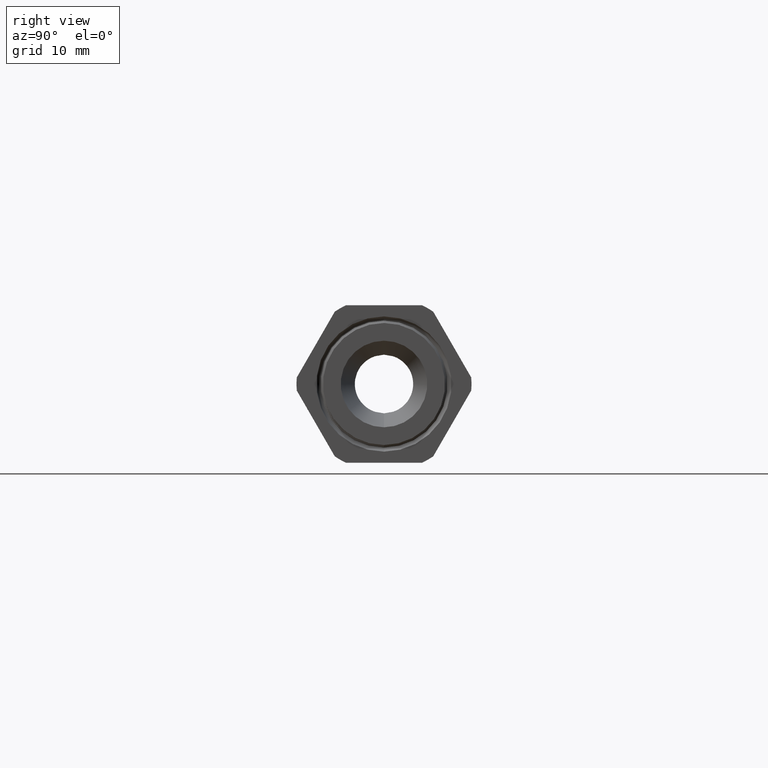
[diagram: clean part render]
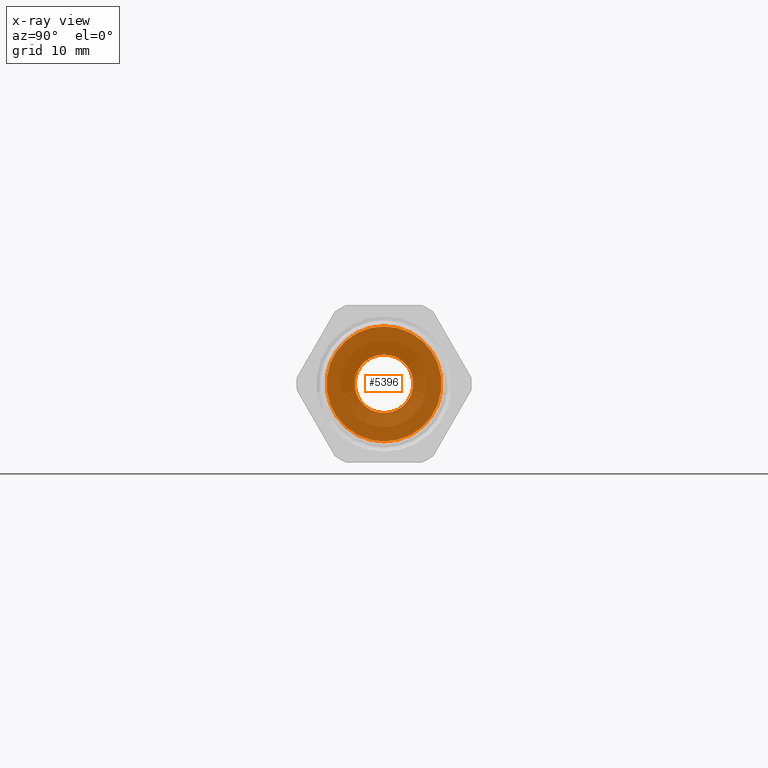
[diagram: x-ray — body ghosted, one internal face saturated and labeled with its STEP entity id]
A machine part, right view, then the same camera in x-ray: the body is ghosted and one INTERNAL B-rep face — a face not visible from any outside direction — is saturated and labeled: STEP entity #5396.
In plain terms, the highlighted planar face has unit normal (1, 0, 0).
Its self-contained STEP definition (entity closure, byte-faithful):
#1099 = AXIS2_PLACEMENT_3D ( 'NONE', #1162, #1161, #1160 ) ;
#1100 = CIRCLE ( 'NONE', #1099, 0.3430999999999999600 ) ;
#1101 = CARTESIAN_POINT ( 'NONE',  ( -1.263700787401574400, 4.201763167874567800E-017, 0.3430999999999999600 ) ) ;
#1159 = CARTESIAN_POINT ( 'NONE',  ( -1.263700787401574400, 0.0000000000000000000, -0.3430999999999999600 ) ) ;
#1160 = DIRECTION ( 'NONE',  ( 0.0000000000000000000, 0.0000000000000000000, -1.000000000000000000 ) ) ;
#1161 = DIRECTION ( 'NONE',  ( 1.000000000000000000, 0.0000000000000000000, 0.0000000000000000000 ) ) ;
#1162 = CARTESIAN_POINT ( 'NONE',  ( -1.263700787401574400, 0.0000000000000000000, 0.0000000000000000000 ) ) ;
#1163 = DIRECTION ( 'NONE',  ( 0.0000000000000000000, 0.0000000000000000000, -1.000000000000000000 ) ) ;
#1164 = DIRECTION ( 'NONE',  ( 1.000000000000000000, 0.0000000000000000000, 0.0000000000000000000 ) ) ;
#1165 = CARTESIAN_POINT ( 'NONE',  ( -1.263700787401574400, 0.3430999999999999600, 0.0000000000000000000 ) ) ;
#1166 = AXIS2_PLACEMENT_3D ( 'NONE', #1165, #1164, #1163 ) ;
#1167 = PLANE ( 'NONE',  #1166 ) ;
#1168 = FACE_BOUND ( 'NONE', #5400, .T. ) ;
#1169 = FACE_OUTER_BOUND ( 'NONE', #5370, .T. ) ;
#1187 = CARTESIAN_POINT ( 'NONE',  ( -1.263700787401574400, 0.0000000000000000000, -0.1749999999999999900 ) ) ;
#1188 = DIRECTION ( 'NONE',  ( 0.0000000000000000000, 0.0000000000000000000, -1.000000000000000000 ) ) ;
#1189 = DIRECTION ( 'NONE',  ( 1.000000000000000000, 0.0000000000000000000, 0.0000000000000000000 ) ) ;
#1190 = CARTESIAN_POINT ( 'NONE',  ( -1.263700787401574400, 0.0000000000000000000, 0.0000000000000000000 ) ) ;
#1191 = AXIS2_PLACEMENT_3D ( 'NONE', #1190, #1189, #1188 ) ;
#1192 = CIRCLE ( 'NONE', #1191, 0.1749999999999999900 ) ;
#1193 = CARTESIAN_POINT ( 'NONE',  ( -1.263700787401574400, 2.143131898507868000E-017, 0.1749999999999999900 ) ) ;
#1219 = DIRECTION ( 'NONE',  ( 0.0000000000000000000, 0.0000000000000000000, -1.000000000000000000 ) ) ;
#1220 = DIRECTION ( 'NONE',  ( 1.000000000000000000, 0.0000000000000000000, 0.0000000000000000000 ) ) ;
#1221 = CARTESIAN_POINT ( 'NONE',  ( -1.263700787401574400, 0.0000000000000000000, 0.0000000000000000000 ) ) ;
#1222 = AXIS2_PLACEMENT_3D ( 'NONE', #1221, #1220, #1219 ) ;
#1223 = CIRCLE ( 'NONE', #1222, 0.1749999999999999900 ) ;
#1224 = DIRECTION ( 'NONE',  ( 0.0000000000000000000, 0.0000000000000000000, -1.000000000000000000 ) ) ;
#1225 = DIRECTION ( 'NONE',  ( 1.000000000000000000, 0.0000000000000000000, 0.0000000000000000000 ) ) ;
#1226 = CARTESIAN_POINT ( 'NONE',  ( -1.263700787401574400, 0.0000000000000000000, 0.0000000000000000000 ) ) ;
#1227 = AXIS2_PLACEMENT_3D ( 'NONE', #1226, #1225, #1224 ) ;
#1228 = CIRCLE ( 'NONE', #1227, 0.3430999999999999600 ) ;
#5364 = VERTEX_POINT ( 'NONE', #1101 ) ;
#5366 = EDGE_CURVE ( 'NONE', #5367, #5364, #1100, .T. ) ;
#5367 = VERTEX_POINT ( 'NONE', #1159 ) ;
#5370 = EDGE_LOOP ( 'NONE', ( #5397, #5398 ) ) ;
#5384 = VERTEX_POINT ( 'NONE', #1193 ) ;
#5386 = EDGE_CURVE ( 'NONE', #5384, #5387, #1192, .T. ) ;
#5387 = VERTEX_POINT ( 'NONE', #1187 ) ;
#5396 = ADVANCED_FACE ( 'NONE', ( #1169, #1168 ), #1167, .T. ) ;
#5397 = ORIENTED_EDGE ( 'NONE', *, *, #5366, .T. ) ;
#5398 = ORIENTED_EDGE ( 'NONE', *, *, #5399, .T. ) ;
#5399 = EDGE_CURVE ( 'NONE', #5364, #5367, #1228, .T. ) ;
#5400 = EDGE_LOOP ( 'NONE', ( #5401, #5403 ) ) ;
#5401 = ORIENTED_EDGE ( 'NONE', *, *, #5402, .F. ) ;
#5402 = EDGE_CURVE ( 'NONE', #5387, #5384, #1223, .T. ) ;
#5403 = ORIENTED_EDGE ( 'NONE', *, *, #5386, .F. ) ;